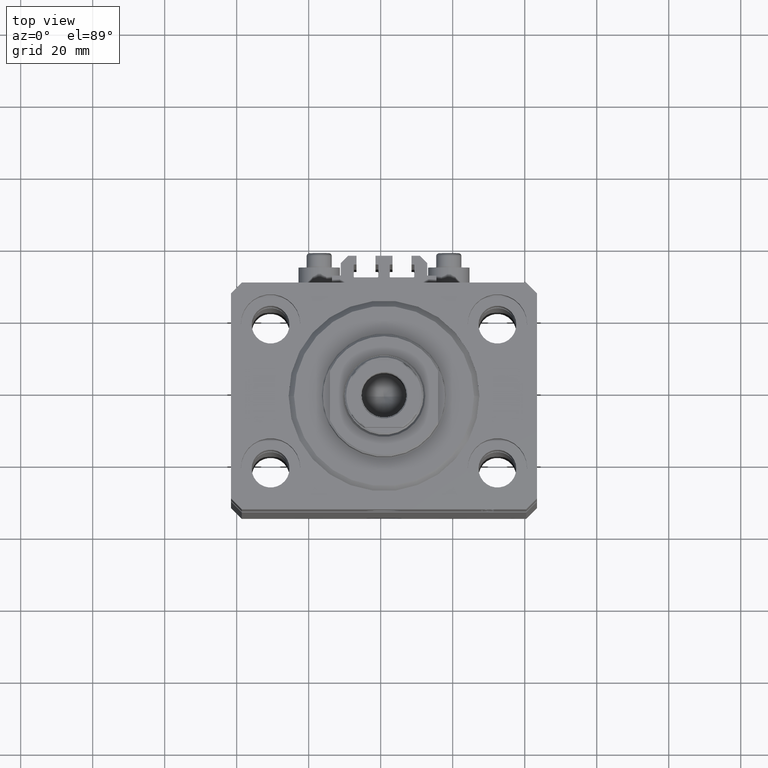
[diagram: clean part render]
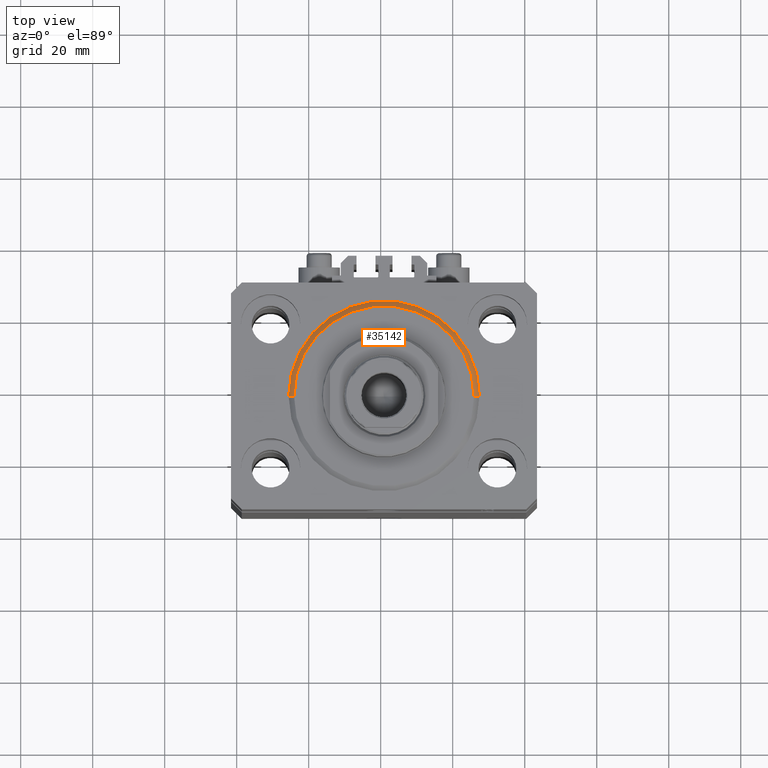
[diagram: same view with one face highlighted and labeled with its STEP entity id]
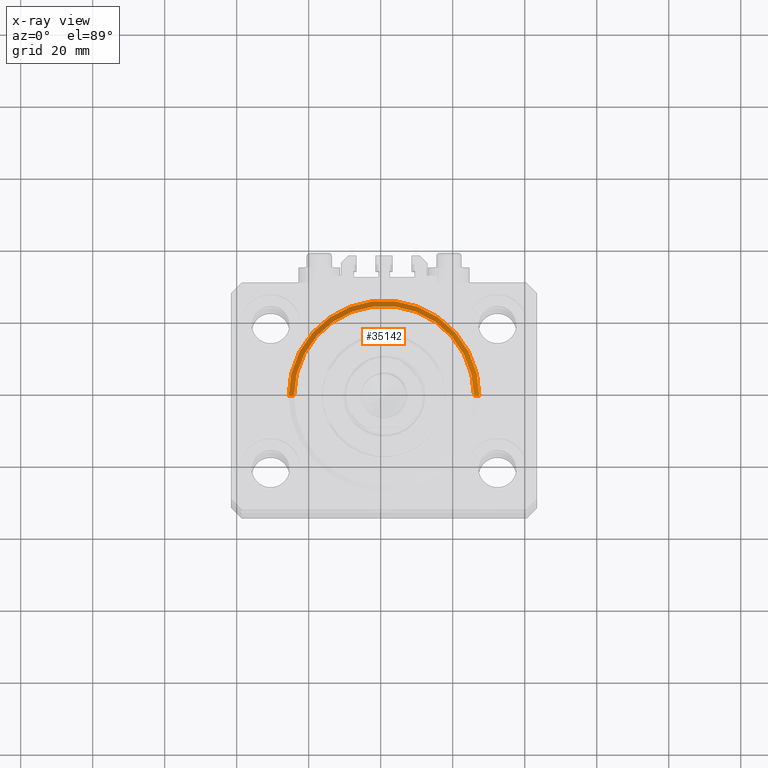
[diagram: x-ray of the same camera — body ghosted, the highlighted face saturated]
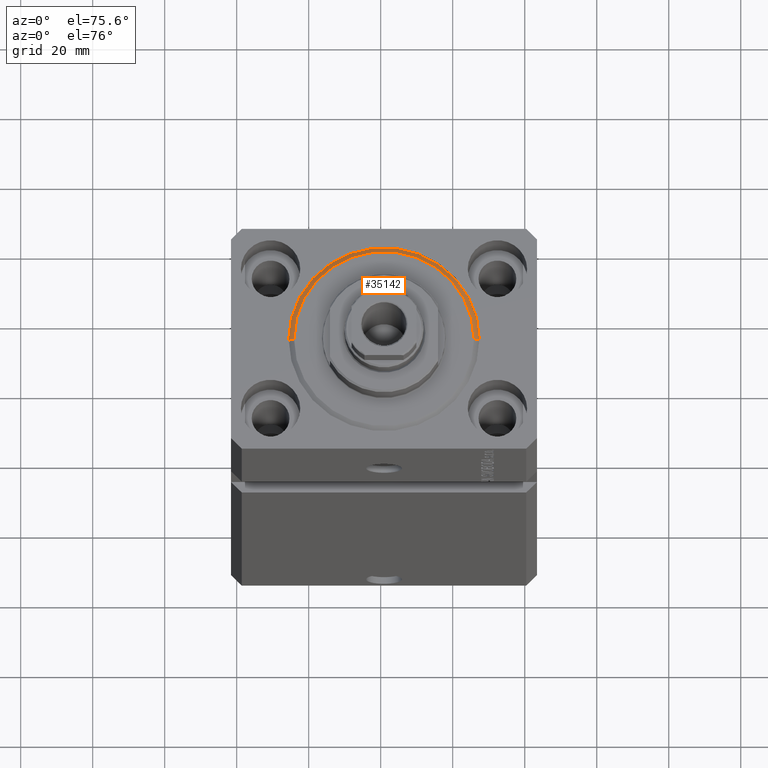
[diagram: same view with one face highlighted and labeled with its STEP entity id]
A machine part, top view. The second image highlights one B-rep face of the part: STEP entity #35142.
The next image is the same camera in x-ray: the body ghosted, the highlighted face saturated — about 0% of this face is hidden behind the body in this view.
A second angle (auxiliary view) of the same face is appended — the face is thin or edge-on in the first view.
In plain terms, the highlighted conical surface has half-angle 45 deg.
Its self-contained STEP definition (entity closure, byte-faithful):
#787 = VECTOR ( 'NONE', #20313, 1000.000000000000000 ) ;
#1741 = CARTESIAN_POINT ( 'NONE',  ( 0.000000000000000000, 0.000000000000000000, 1.500000000000046407 ) ) ;
#2695 = EDGE_CURVE ( 'NONE', #15161, #15305, #6336, .T. ) ;
#5394 = DIRECTION ( 'NONE',  ( 1.000000000000000000, 0.000000000000000000, 0.000000000000000000 ) ) ;
#5633 = FACE_OUTER_BOUND ( 'NONE', #17422, .T. ) ;
#6336 = CIRCLE ( 'NONE', #33504, 26.50000000000000355 ) ;
#7607 = CARTESIAN_POINT ( 'NONE',  ( 0.000000000000000000, 0.000000000000000000, 1.500000000000046407 ) ) ;
#13033 = CARTESIAN_POINT ( 'NONE',  ( 24.99999999999995026, 0.000000000000000000, 0.000000000000000000 ) ) ;
#13195 = ORIENTED_EDGE ( 'NONE', *, *, #18922, .F. ) ;
#15161 = VERTEX_POINT ( 'NONE', #16777 ) ;
#15301 = CARTESIAN_POINT ( 'NONE',  ( -24.99999999999995026, 3.153465507804431248E-15, 0.000000000000000000 ) ) ;
#15305 = VERTEX_POINT ( 'NONE', #44230 ) ;
#16777 = CARTESIAN_POINT ( 'NONE',  ( 26.50000000000000355, 3.245314017740485765E-15, 1.500000000000046407 ) ) ;
#16906 = LINE ( 'NONE', #19838, #787 ) ;
#17422 = EDGE_LOOP ( 'NONE', ( #13195, #35563, #46675, #41745 ) ) ;
#17494 = VERTEX_POINT ( 'NONE', #13033 ) ;
#17594 = VECTOR ( 'NONE', #33034, 1000.000000000000000 ) ;
#18922 = EDGE_CURVE ( 'NONE', #39585, #17494, #43313, .T. ) ;
#19838 = CARTESIAN_POINT ( 'NONE',  ( 26.50000000000000355, 0.000000000000000000, 1.500000000000046407 ) ) ;
#20313 = DIRECTION ( 'NONE',  ( 0.7071067811865491270, 0.000000000000000000, 0.7071067811865459074 ) ) ;
#20470 = DIRECTION ( 'NONE',  ( -0.000000000000000000, -0.000000000000000000, 1.000000000000000000 ) ) ;
#22458 = DIRECTION ( 'NONE',  ( -0.000000000000000000, -0.000000000000000000, 1.000000000000000000 ) ) ;
#27308 = DIRECTION ( 'NONE',  ( 1.000000000000000000, 0.000000000000000000, 0.000000000000000000 ) ) ;
#27709 = AXIS2_PLACEMENT_3D ( 'NONE', #1741, #20470, #31419 ) ;
#27751 = AXIS2_PLACEMENT_3D ( 'NONE', #38232, #41402, #5394 ) ;
#31419 = DIRECTION ( 'NONE',  ( 1.000000000000000000, 0.000000000000000000, 0.000000000000000000 ) ) ;
#33034 = DIRECTION ( 'NONE',  ( -0.7071067811865491270, 8.659560562354952580E-17, 0.7071067811865459074 ) ) ;
#33504 = AXIS2_PLACEMENT_3D ( 'NONE', #7607, #22458, #27308 ) ;
#35142 = ADVANCED_FACE ( 'NONE', ( #5633 ), #43994, .T. ) ;
#35563 = ORIENTED_EDGE ( 'NONE', *, *, #38109, .T. ) ;
#37403 = LINE ( 'NONE', #44959, #17594 ) ;
#38109 = EDGE_CURVE ( 'NONE', #39585, #15305, #37403, .T. ) ;
#38232 = CARTESIAN_POINT ( 'NONE',  ( 0.000000000000000000, 0.000000000000000000, 0.000000000000000000 ) ) ;
#39585 = VERTEX_POINT ( 'NONE', #15301 ) ;
#41402 = DIRECTION ( 'NONE',  ( -0.000000000000000000, -0.000000000000000000, -1.000000000000000000 ) ) ;
#41745 = ORIENTED_EDGE ( 'NONE', *, *, #46489, .F. ) ;
#43313 = CIRCLE ( 'NONE', #27751, 24.99999999999995026 ) ;
#43994 = CONICAL_SURFACE ( 'NONE', #27709, 26.50000000000000355, 0.7853981633974506105 ) ;
#44230 = CARTESIAN_POINT ( 'NONE',  ( -26.50000000000000355, 0.000000000000000000, 1.500000000000046407 ) ) ;
#44959 = CARTESIAN_POINT ( 'NONE',  ( -26.50000000000000355, 3.245314017740486554E-15, 1.500000000000046407 ) ) ;
#46489 = EDGE_CURVE ( 'NONE', #17494, #15161, #16906, .T. ) ;
#46675 = ORIENTED_EDGE ( 'NONE', *, *, #2695, .F. ) ;